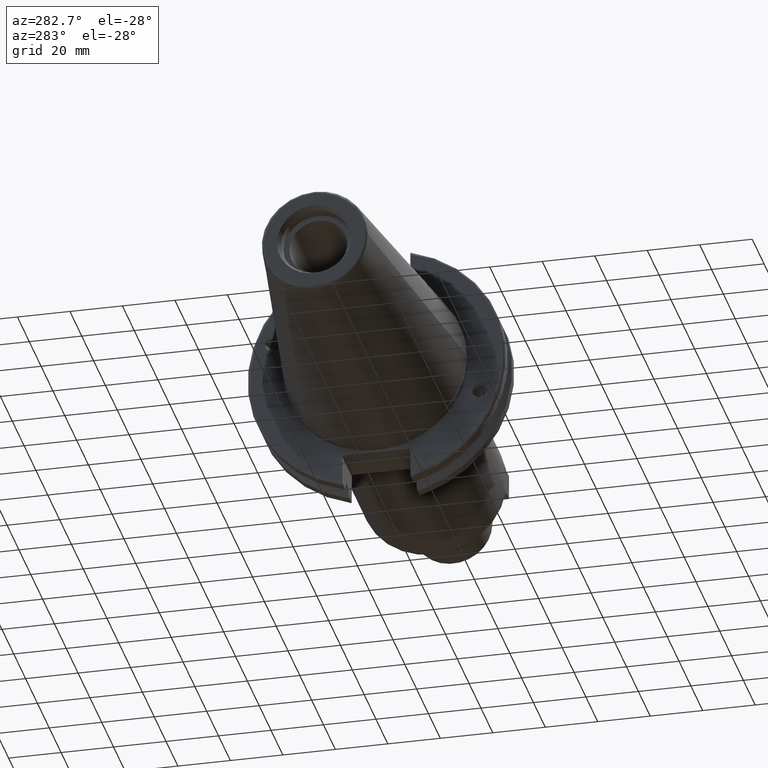
[diagram: clean part render]
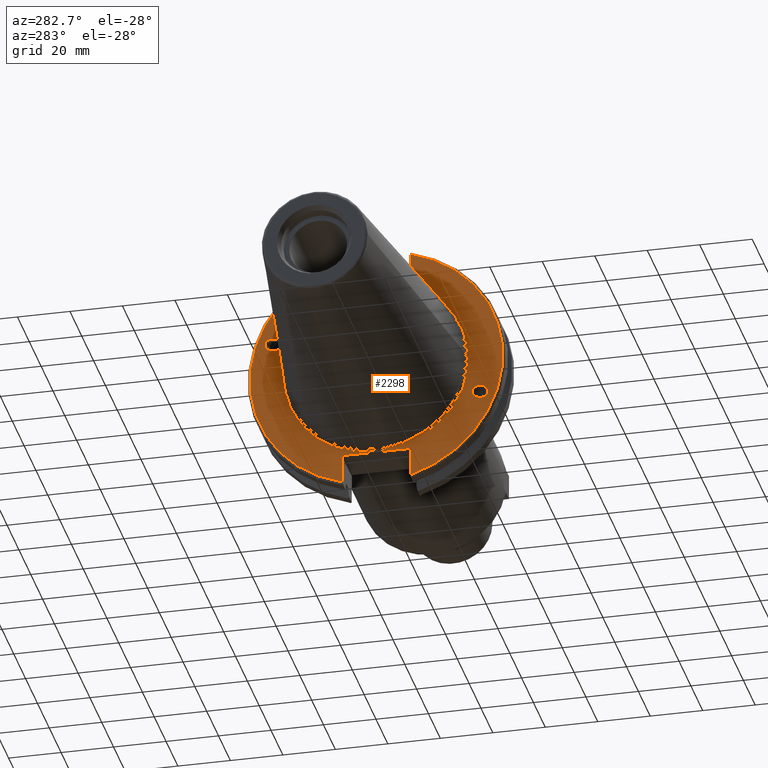
[diagram: same view with one face highlighted and labeled with its STEP entity id]
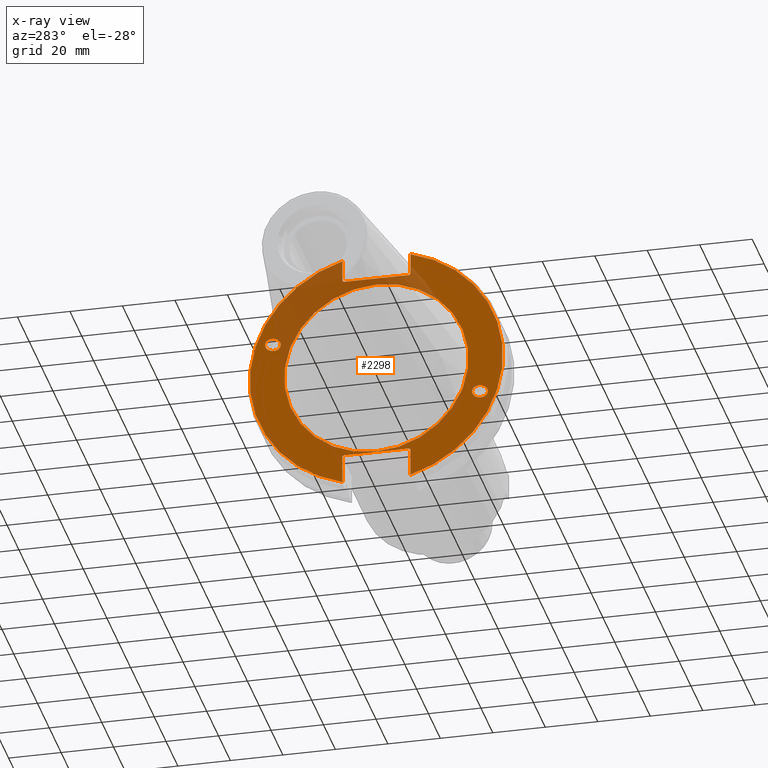
[diagram: x-ray of the same camera — body ghosted, the highlighted face saturated]
A machine part, auxiliary view. The second image highlights one B-rep face of the part: STEP entity #2298.
The next image is the same camera in x-ray: the body ghosted, the highlighted face saturated — about 21% of this face is hidden behind the body in this view.
In plain terms, the highlighted planar face has unit normal (-1, 0, 0).
Its self-contained STEP definition (entity closure, byte-faithful):
#55=ELLIPSE('',#2545,3.05193647190364,2.5);
#56=ELLIPSE('',#2579,3.05193647190364,2.5);
#87=FACE_BOUND('',#452,.T.);
#88=FACE_BOUND('',#453,.T.);
#89=FACE_BOUND('',#454,.T.);
#158=PLANE('',#2589);
#300=FACE_OUTER_BOUND('',#451,.T.);
#451=EDGE_LOOP('',(#1843,#1844,#1845,#1846,#1847,#1848,#1849,#1850,#1851,
#1852,#1853,#1854));
#452=EDGE_LOOP('',(#1855));
#453=EDGE_LOOP('',(#1856));
#454=EDGE_LOOP('',(#1857));
#607=LINE('',#4183,#763);
#608=LINE('',#4185,#764);
#609=LINE('',#4187,#765);
#610=LINE('',#4189,#766);
#611=LINE('',#4191,#767);
#612=LINE('',#4195,#768);
#613=LINE('',#4197,#769);
#614=LINE('',#4199,#770);
#615=LINE('',#4201,#771);
#616=LINE('',#4202,#772);
#763=VECTOR('',#3062,10.);
#764=VECTOR('',#3063,10.);
#765=VECTOR('',#3064,10.);
#766=VECTOR('',#3065,10.);
#767=VECTOR('',#3066,10.);
#768=VECTOR('',#3069,10.);
#769=VECTOR('',#3070,10.);
#770=VECTOR('',#3071,10.);
#771=VECTOR('',#3072,10.);
#772=VECTOR('',#3073,10.);
#919=CIRCLE('',#2587,35.125);
#921=CIRCLE('',#2590,48.2125);
#922=CIRCLE('',#2591,48.2125);
#1059=VERTEX_POINT('',#3900);
#1097=VERTEX_POINT('',#4159);
#1102=VERTEX_POINT('',#4174);
#1103=VERTEX_POINT('',#4179);
#1104=VERTEX_POINT('',#4180);
#1105=VERTEX_POINT('',#4182);
#1106=VERTEX_POINT('',#4184);
#1107=VERTEX_POINT('',#4186);
#1108=VERTEX_POINT('',#4188);
#1109=VERTEX_POINT('',#4190);
#1110=VERTEX_POINT('',#4192);
#1111=VERTEX_POINT('',#4194);
#1112=VERTEX_POINT('',#4196);
#1113=VERTEX_POINT('',#4198);
#1114=VERTEX_POINT('',#4200);
#1315=EDGE_CURVE('',#1059,#1059,#55,.T.);
#1366=EDGE_CURVE('',#1097,#1097,#56,.T.);
#1373=EDGE_CURVE('',#1102,#1102,#919,.T.);
#1375=EDGE_CURVE('',#1103,#1104,#921,.T.);
#1376=EDGE_CURVE('',#1103,#1105,#607,.T.);
#1377=EDGE_CURVE('',#1106,#1105,#608,.T.);
#1378=EDGE_CURVE('',#1106,#1107,#609,.T.);
#1379=EDGE_CURVE('',#1108,#1107,#610,.T.);
#1380=EDGE_CURVE('',#1108,#1109,#611,.T.);
#1381=EDGE_CURVE('',#1110,#1109,#922,.T.);
#1382=EDGE_CURVE('',#1110,#1111,#612,.T.);
#1383=EDGE_CURVE('',#1112,#1111,#613,.T.);
#1384=EDGE_CURVE('',#1112,#1113,#614,.T.);
#1385=EDGE_CURVE('',#1114,#1113,#615,.T.);
#1386=EDGE_CURVE('',#1114,#1104,#616,.T.);
#1843=ORIENTED_EDGE('',*,*,#1375,.F.);
#1844=ORIENTED_EDGE('',*,*,#1376,.T.);
#1845=ORIENTED_EDGE('',*,*,#1377,.F.);
#1846=ORIENTED_EDGE('',*,*,#1378,.T.);
#1847=ORIENTED_EDGE('',*,*,#1379,.F.);
#1848=ORIENTED_EDGE('',*,*,#1380,.T.);
#1849=ORIENTED_EDGE('',*,*,#1381,.F.);
#1850=ORIENTED_EDGE('',*,*,#1382,.T.);
#1851=ORIENTED_EDGE('',*,*,#1383,.F.);
#1852=ORIENTED_EDGE('',*,*,#1384,.T.);
#1853=ORIENTED_EDGE('',*,*,#1385,.F.);
#1854=ORIENTED_EDGE('',*,*,#1386,.T.);
#1855=ORIENTED_EDGE('',*,*,#1315,.T.);
#1856=ORIENTED_EDGE('',*,*,#1366,.T.);
#1857=ORIENTED_EDGE('',*,*,#1373,.F.);
#2298=ADVANCED_FACE('',(#300,#87,#88,#89),#158,.T.);
#2545=AXIS2_PLACEMENT_3D('',#3902,#2952,#2953);
#2579=AXIS2_PLACEMENT_3D('',#4161,#3036,#3037);
#2587=AXIS2_PLACEMENT_3D('',#4176,#3054,#3055);
#2589=AXIS2_PLACEMENT_3D('',#4178,#3058,#3059);
#2590=AXIS2_PLACEMENT_3D('',#4181,#3060,#3061);
#2591=AXIS2_PLACEMENT_3D('',#4193,#3067,#3068);
#2952=DIRECTION('center_axis',(1.,0.,0.));
#2953=DIRECTION('ref_axis',(0.,-0.939692620785908,-0.342020143325668));
#3036=DIRECTION('center_axis',(1.,0.,0.));
#3037=DIRECTION('ref_axis',(0.,0.939692620785908,0.342020143325669));
#3054=DIRECTION('center_axis',(-1.,0.,0.));
#3055=DIRECTION('ref_axis',(0.,-1.,1.83697019872103E-16));
#3058=DIRECTION('center_axis',(-1.,0.,0.));
#3059=DIRECTION('ref_axis',(0.,0.,1.));
#3060=DIRECTION('center_axis',(1.,0.,0.));
#3061=DIRECTION('ref_axis',(0.,-1.,1.60812264967664E-16));
#3062=DIRECTION('',(0.,0.,-1.));
#3063=DIRECTION('',(0.,-0.707106781186549,0.707106781186546));
#3064=DIRECTION('',(0.,1.,0.));
#3065=DIRECTION('',(0.,-0.707106781186549,-0.707106781186546));
#3066=DIRECTION('',(0.,0.,1.));
#3067=DIRECTION('center_axis',(1.,0.,0.));
#3068=DIRECTION('ref_axis',(0.,1.,-6.12323399573677E-17));
#3069=DIRECTION('',(0.,0.,1.));
#3070=DIRECTION('',(0.,0.707106781186549,-0.707106781186546));
#3071=DIRECTION('',(0.,-1.,0.));
#3072=DIRECTION('',(0.,0.707106781186549,0.707106781186546));
#3073=DIRECTION('',(0.,0.,-1.));
#3900=CARTESIAN_POINT('',(3.175,-36.5992078912529,-13.3210222701368));
#3902=CARTESIAN_POINT('Origin',(3.175,-39.4670900730082,-14.3648460196781));
#4159=CARTESIAN_POINT('',(3.175,36.5992078912529,13.3210222701368));
#4161=CARTESIAN_POINT('Origin',(3.175,39.4670900730082,14.3648460196781));
#4174=CARTESIAN_POINT('',(3.175,-4.30157188200508E-15,35.125));
#4176=CARTESIAN_POINT('Origin',(3.175,0.,0.));
#4178=CARTESIAN_POINT('Origin',(3.175,49.2125,0.));
#4179=CARTESIAN_POINT('',(3.175,-12.95,46.4407434937254));
#4180=CARTESIAN_POINT('',(3.175,-12.95,-46.4407434937254));
#4181=CARTESIAN_POINT('Origin',(3.175,0.,0.));
#4182=CARTESIAN_POINT('',(3.175,-12.95,38.219));
#4183=CARTESIAN_POINT('',(3.175,-12.95,18.8595));
#4184=CARTESIAN_POINT('',(3.175,-12.45,37.719));
#4185=CARTESIAN_POINT('',(3.175,12.2703750000001,12.998625));
#4186=CARTESIAN_POINT('',(3.175,12.45,37.719));
#4187=CARTESIAN_POINT('',(3.175,24.60625,37.719));
#4188=CARTESIAN_POINT('',(3.175,12.95,38.219));
#4189=CARTESIAN_POINT('',(3.175,12.335875,37.604875));
#4190=CARTESIAN_POINT('',(3.175,12.95,46.4407434937254));
#4191=CARTESIAN_POINT('',(3.175,12.95,18.8595));
#4192=CARTESIAN_POINT('',(3.175,12.95,-46.4407434937254));
#4193=CARTESIAN_POINT('Origin',(3.175,0.,0.));
#4194=CARTESIAN_POINT('',(3.175,12.95,-35.806));
#4195=CARTESIAN_POINT('',(3.175,12.95,-17.653));
#4196=CARTESIAN_POINT('',(3.175,12.45,-35.306));
#4197=CARTESIAN_POINT('',(3.175,12.939125,-35.795125));
#4198=CARTESIAN_POINT('',(3.175,-12.45,-35.306));
#4199=CARTESIAN_POINT('',(3.175,24.60625,-35.306));
#4200=CARTESIAN_POINT('',(3.175,-12.95,-35.806));
#4201=CARTESIAN_POINT('',(3.175,11.6671250000001,-11.188875));
#4202=CARTESIAN_POINT('',(3.175,-12.95,-17.653));